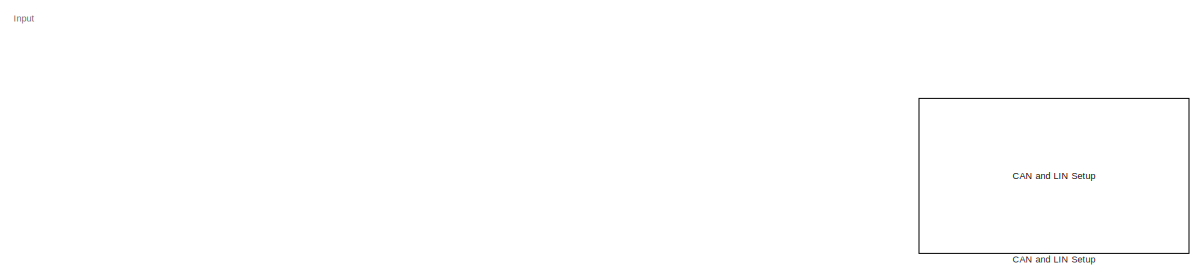
[diagram: root canvas - part 1/8, top left region]
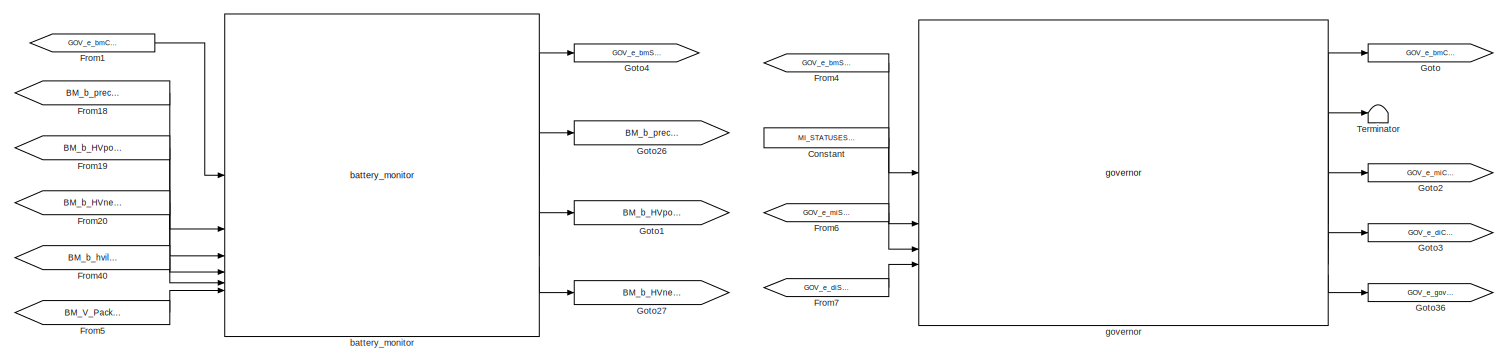
[diagram: root canvas - part 2/8, top center region]
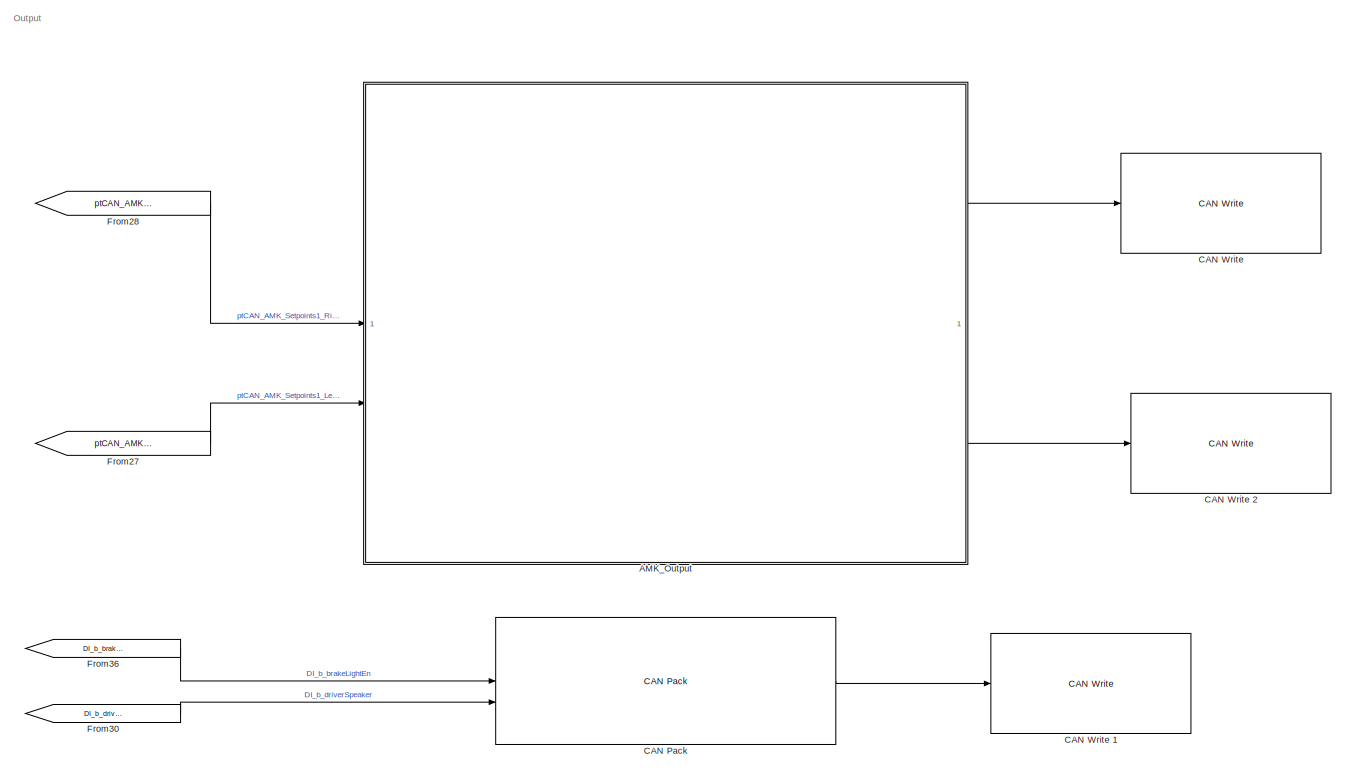
[diagram: root canvas - part 3/8, middle right region]
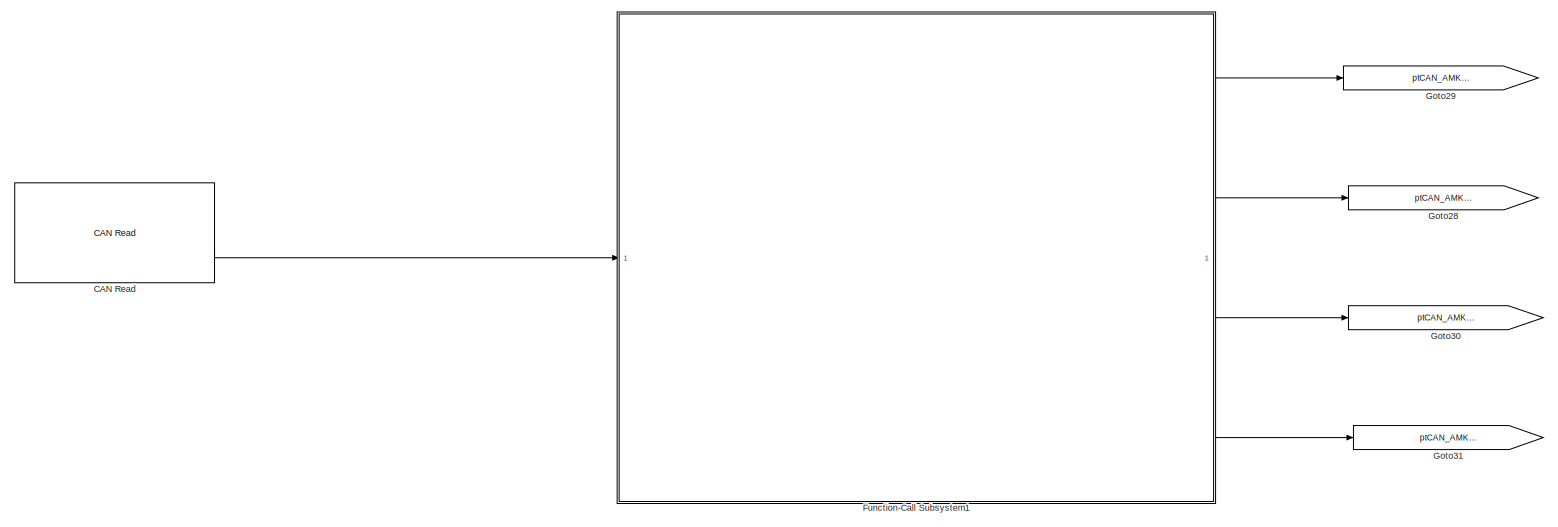
[diagram: root canvas - part 4/8, middle left region]
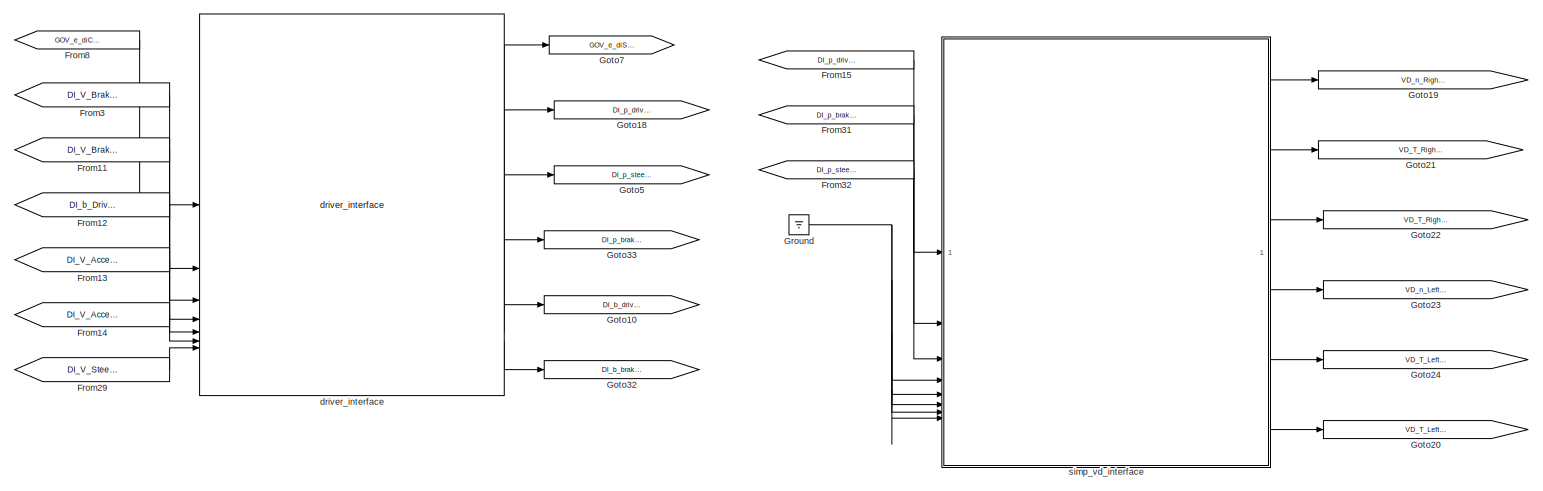
[diagram: root canvas - part 5/8, central region]
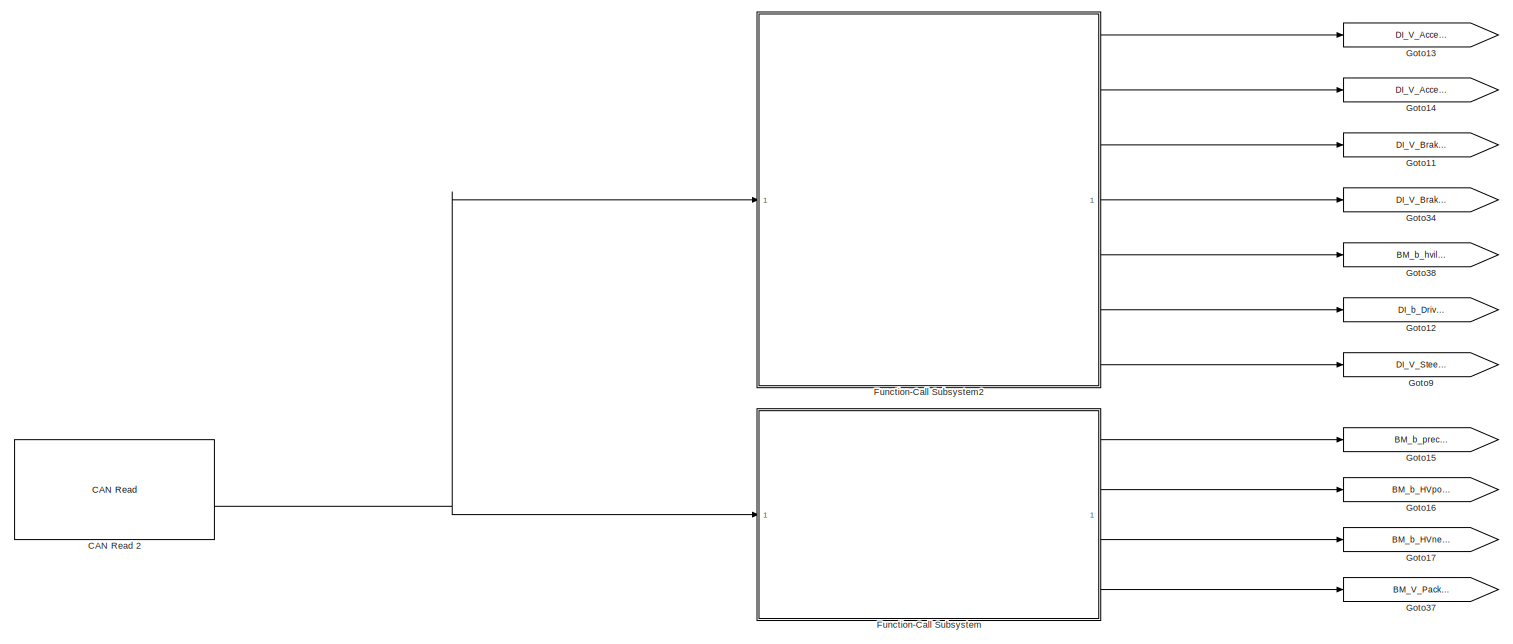
[diagram: root canvas - part 6/8, bottom left region]
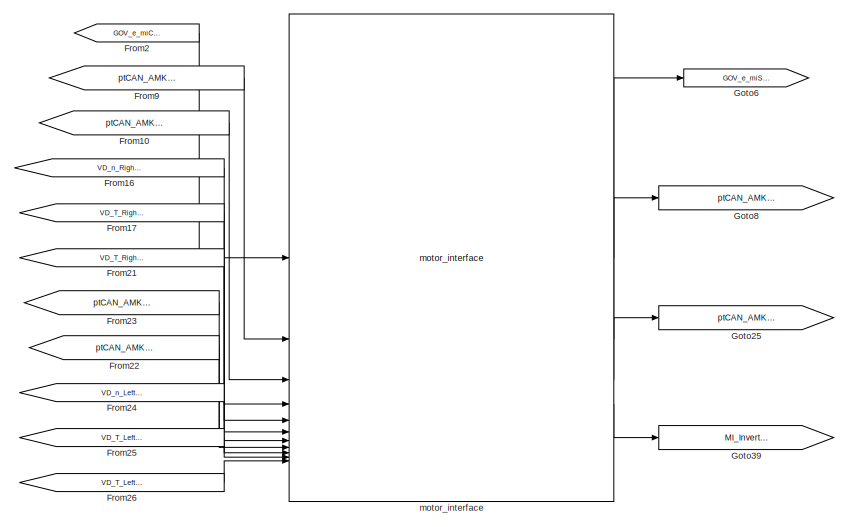
[diagram: root canvas - part 7/8, bottom center region]
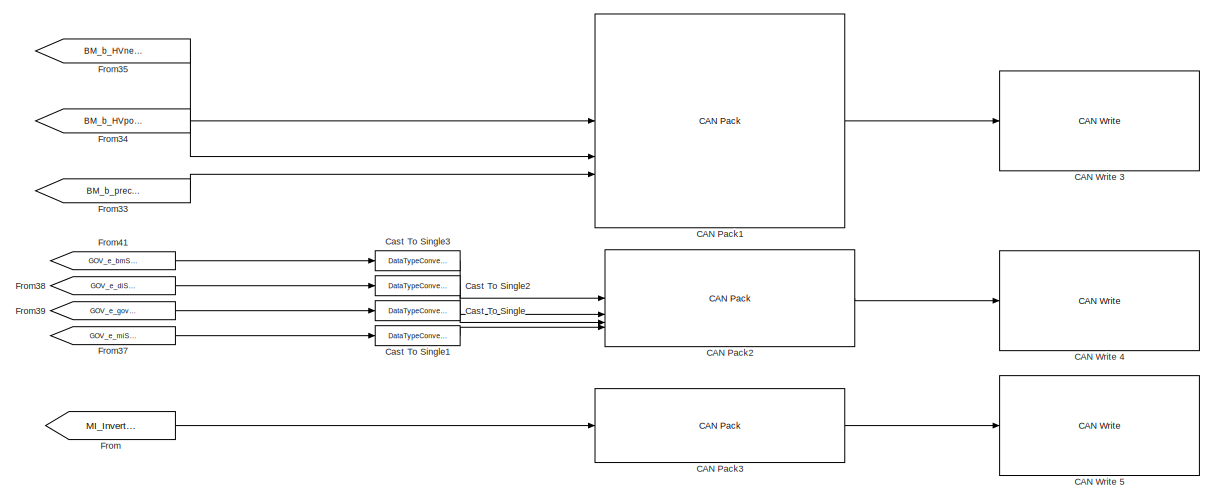
[diagram: root canvas - part 8/8, bottom right region]
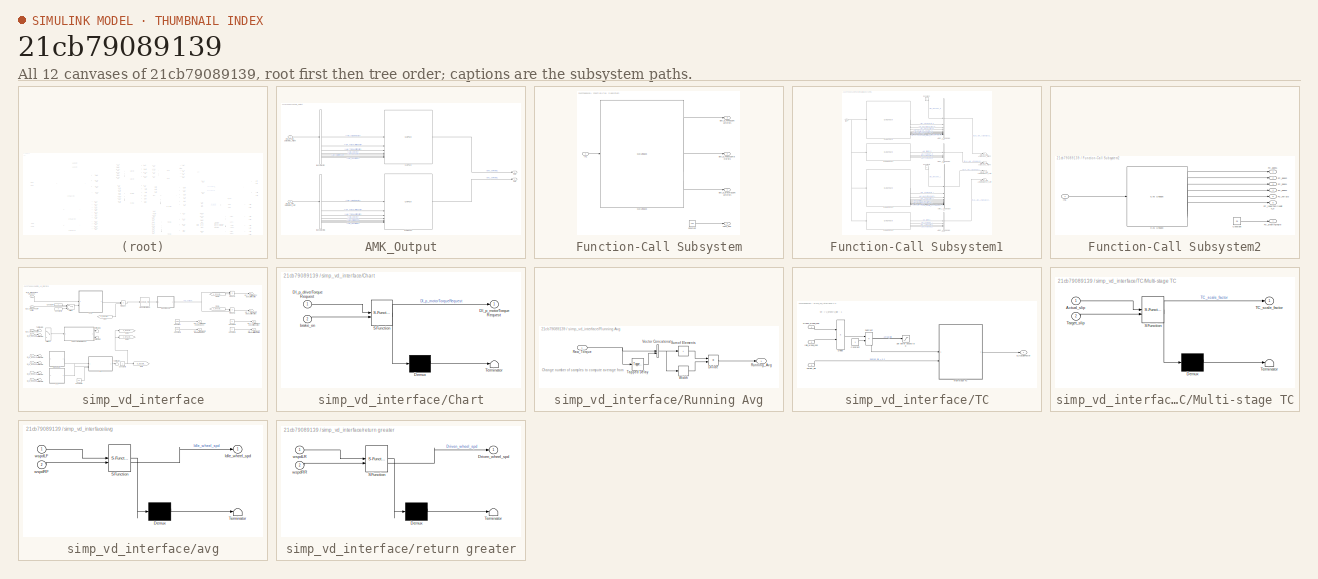
[diagram: thumbnail index - all 12 canvases of the model, root first then tree order]
MODEL slx_21cb79089139
KIND model
CONFIG AbsTol = auto
CONFIG EnableMultiTasking = on
CONFIG FixedStep = 0.001
CONFIG MaxStep = auto
CONFIG MinStep = auto
CONFIG RelTol = 1e-3
CONFIG SampleTimeConstraint = Unconstrained
CONFIG SolverName = FixedStepAuto
CONFIG StartTime = 0.0
CONFIG StopTime = inf
BLOCK [SubSystem] AMK_Output
BLOCK [BusSelector] AMK_Output/Bus Selector
  OutputSignals = AMK_TargetVelocity,AMK_TorqueLimitNegativ,AMK_TorqueLimitPositiv,AMK_bDcOn,AMK_bEnable,AMK_bErrorReset,AMK_bInverterOn
BLOCK [BusSelector] AMK_Output/Bus Selector1
  OutputSignals = AMK_TargetVelocity,AMK_TorqueLimitNegativ,AMK_TorqueLimitPositiv,AMK_bDcOn,AMK_bEnable,AMK_bErrorReset,AMK_bInverterOn
BLOCK [Reference] AMK_Output/CAN Pack  REF=canmsglib/CAN Pack
  LibrarySourceBlock = canlib/CAN Pack
  SourceBlock = canmsglib/CAN Pack
  SourceType = CAN Pack
BLOCK [Reference] AMK_Output/CAN Pack1  REF=canmsglib/CAN Pack
  LibrarySourceBlock = canlib/CAN Pack
  SourceBlock = canmsglib/CAN Pack
  SourceType = CAN Pack
BLOCK [Outport] AMK_Output/Out1
BLOCK [Outport] AMK_Output/Out2
  Port = 2
BLOCK [Inport] AMK_Output/ptCAN_AMK_Setpoints1_Left
  Port = 2
BLOCK [Inport] AMK_Output/ptCAN_AMK_Setpoints1_Right
BLOCK [Reference] CAN Pack  REF=canmsglib/CAN Pack
  LibrarySourceBlock = embeddedtargetslib/Host Communication/CAN Pack
  SourceBlock = canmsglib/CAN Pack
  SourceType = CAN Pack
BLOCK [Reference] CAN Pack1  REF=canmsglib/CAN Pack
  LibrarySourceBlock = embeddedtargetslib/Host Communication/CAN Pack
  SourceBlock = canmsglib/CAN Pack
  SourceType = CAN Pack
BLOCK [Reference] CAN Pack2  REF=canmsglib/CAN Pack
  LibrarySourceBlock = embeddedtargetslib/Host Communication/CAN Pack
  SourceBlock = canmsglib/CAN Pack
  SourceType = CAN Pack
BLOCK [Reference] CAN Pack3  REF=canmsglib/CAN Pack
  LibrarySourceBlock = embeddedtargetslib/Host Communication/CAN Pack
  SourceBlock = canmsglib/CAN Pack
  SourceType = CAN Pack
BLOCK [Reference] CAN Read   REF=speedgoatlib_IO614/CAN Read 
  SourceBlock = speedgoatlib_IO614/CAN Read
  SourceProductName = Simulink Real-Time: Speedgoat I/O Blockset
  SourceType = read_IO61X_can
BLOCK [Reference] CAN Read 2  REF=speedgoatlib_IO614/CAN Read 
  SourceBlock = speedgoatlib_IO614/CAN Read
  SourceProductName = Simulink Real-Time: Speedgoat I/O Blockset
  SourceType = read_IO61X_can
BLOCK [Reference] CAN Write   REF=speedgoatlib_IO614/CAN Write 
  SourceBlock = speedgoatlib_IO614/CAN Write
  SourceProductName = Simulink Real-Time: Speedgoat I/O Blockset
  SourceType = write_IO61X_can
BLOCK [Reference] CAN Write 1  REF=speedgoatlib_IO614/CAN Write 
  SourceBlock = speedgoatlib_IO614/CAN Write
  SourceProductName = Simulink Real-Time: Speedgoat I/O Blockset
  SourceType = write_IO61X_can
BLOCK [Reference] CAN Write 2  REF=speedgoatlib_IO614/CAN Write 
  SourceBlock = speedgoatlib_IO614/CAN Write
  SourceProductName = Simulink Real-Time: Speedgoat I/O Blockset
  SourceType = write_IO61X_can
BLOCK [Reference] CAN Write 3  REF=speedgoatlib_IO614/CAN Write 
  SourceBlock = speedgoatlib_IO614/CAN Write
  SourceProductName = Simulink Real-Time: Speedgoat I/O Blockset
  SourceType = write_IO61X_can
BLOCK [Reference] CAN Write 4  REF=speedgoatlib_IO614/CAN Write 
  SourceBlock = speedgoatlib_IO614/CAN Write
  SourceProductName = Simulink Real-Time: Speedgoat I/O Blockset
  SourceType = write_IO61X_can
BLOCK [Reference] CAN Write 5  REF=speedgoatlib_IO614/CAN Write 
  SourceBlock = speedgoatlib_IO614/CAN Write
  SourceProductName = Simulink Real-Time: Speedgoat I/O Blockset
  SourceType = write_IO61X_can
BLOCK [Reference] CAN and LIN Setup   REF=speedgoatlib_IO614/CAN and LIN Setup 
  LibrarySourceBlock = speedgoatlib_CANLIN_OfA2/CAN and LIN Setup
  SourceBlock = speedgoatlib_IO614/CAN and LIN Setup
  SourceType = setup_IO61X_canlin
BLOCK [DataTypeConversion] Cast To Single
  OutDataTypeStr = single
  RndMeth = Floor
  SaturateOnIntegerOverflow = off
BLOCK [DataTypeConversion] Cast To Single1
  OutDataTypeStr = single
  RndMeth = Floor
  SaturateOnIntegerOverflow = off
BLOCK [DataTypeConversion] Cast To Single2
  OutDataTypeStr = single
  RndMeth = Floor
  SaturateOnIntegerOverflow = off
BLOCK [DataTypeConversion] Cast To Single3
  OutDataTypeStr = single
  RndMeth = Floor
  SaturateOnIntegerOverflow = off
BLOCK [Constant] Constant
  OutDataTypeStr = Enum: MI_STATUSES
  Value = MI_STATUSES.STS_INIT
BLOCK [From] From
  GotoTag = MI_InverterEn
BLOCK [From] From1
  GotoTag = GOV_e_bmCmd
BLOCK [From] From10
  GotoTag = ptCAN_AMK_ActualValues2_Right
BLOCK [From] From11
  GotoTag = DI_V_BrakePedalPos2
BLOCK [From] From12
  GotoTag = DI_b_DriverButton
BLOCK [From] From13
  GotoTag = DI_V_AccelPedalPos1
BLOCK [From] From14
  GotoTag = DI_V_AccelPedalPos2
BLOCK [From] From15
  GotoTag = DI_p_driverTorqueRequest
BLOCK [From] From16
  GotoTag = VD_n_RightMotorSpeedRequest
BLOCK [From] From17
  GotoTag = VD_T_RightMotorTorqueLimitPositive
BLOCK [From] From18
  GotoTag = BM_b_prechrgContactorSts
BLOCK [From] From19
  GotoTag = BM_b_HVposContactorSts
BLOCK [From] From2
  GotoTag = GOV_e_miCmd
BLOCK [From] From20
  GotoTag = BM_b_HVnegContactorSts
BLOCK [From] From21
  GotoTag = VD_T_RightMotorTorqueLimitNegative
BLOCK [From] From22
  GotoTag = ptCAN_AMK_ActualValues2_Left
BLOCK [From] From23
  GotoTag = ptCAN_AMK_ActualValues1_Left
BLOCK [From] From24
  GotoTag = VD_n_LeftMotorSpeedRequest
BLOCK [From] From25
  GotoTag = VD_T_LeftMotorTorqueLimitPositive
BLOCK [From] From26
  GotoTag = VD_T_LeftMotorTorqueLimitNegative
BLOCK [From] From27
  GotoTag = ptCAN_AMK_Setpoints1_Left
BLOCK [From] From28
  GotoTag = ptCAN_AMK_Setpoints1_Right
BLOCK [From] From29
  GotoTag = DI_V_SteeringAngle
BLOCK [From] From3
  GotoTag = DI_V_BrakePedalPos1
BLOCK [From] From30
  GotoTag = DI_b_driverSpeaker
BLOCK [From] From31
  GotoTag = DI_p_brakePedalPosition
BLOCK [From] From32
  GotoTag = DI_p_steeringAngle
BLOCK [From] From33
  GotoTag = BM_b_prechargeContactorCMD
BLOCK [From] From34
  GotoTag = BM_b_HVposContactorCMD
BLOCK [From] From35
  GotoTag = BM_b_HVnegContactorCMD
BLOCK [From] From36
  GotoTag = DI_b_brakeLightEn
BLOCK [From] From37
  GotoTag = GOV_e_miSts
BLOCK [From] From38
  GotoTag = GOV_e_diSts
BLOCK [From] From39
  GotoTag = GOV_e_govSts
BLOCK [From] From4
  GotoTag = GOV_e_bmSts
BLOCK [From] From40
  GotoTag = BM_b_hvilSts
BLOCK [From] From41
  GotoTag = GOV_e_bmSts
BLOCK [From] From5
  GotoTag = BM_V_Pack_SOC
BLOCK [From] From6
  GotoTag = GOV_e_miSts
BLOCK [From] From7
  GotoTag = GOV_e_diSts
BLOCK [From] From8
  GotoTag = GOV_e_diCmd
BLOCK [From] From9
  GotoTag = ptCAN_AMK_ActualValues1_Right
BLOCK [SubSystem] Function-Call Subsystem
  TreatAsAtomicUnit = on
BLOCK [Outport] Function-Call Subsystem/BM_b_HVnegContactorSts
  Port = 3
BLOCK [Outport] Function-Call Subsystem/BM_b_HVposContactorSts
  Port = 2
BLOCK [Outport] Function-Call Subsystem/BM_b_prechrgContactorSts
BLOCK [Reference] Function-Call Subsystem/CAN Unpack  REF=canmsglib/CAN Unpack
  LibrarySourceBlock = canlib/CAN Unpack
  SourceBlock = canmsglib/CAN Unpack
  SourceType = CAN Unpack
BLOCK [Constant] Function-Call Subsystem/Constant
  Value = 100
BLOCK [Inport] Function-Call Subsystem/In1
BLOCK [Outport] Function-Call Subsystem/Pack_SOC
  Port = 4
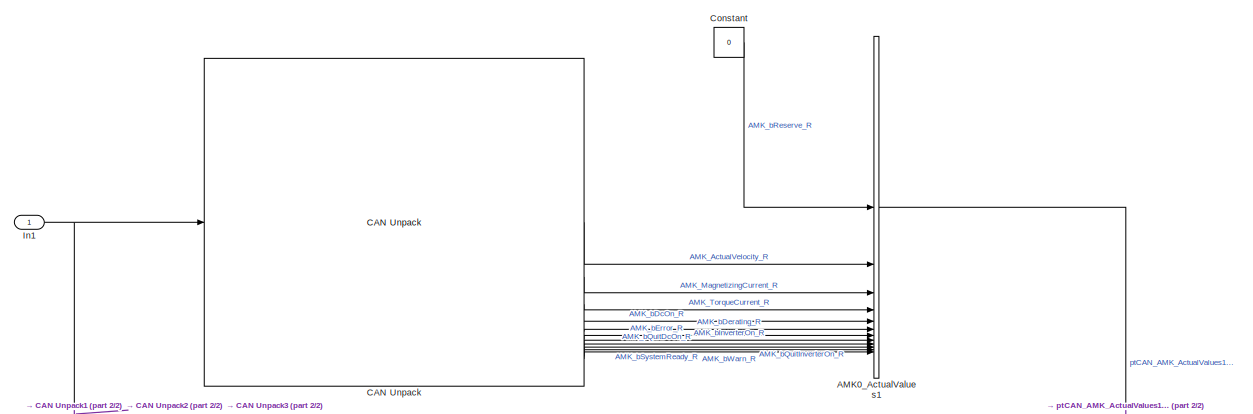
[diagram: Function-Call Subsystem1 - part 1/2, full width, top band]
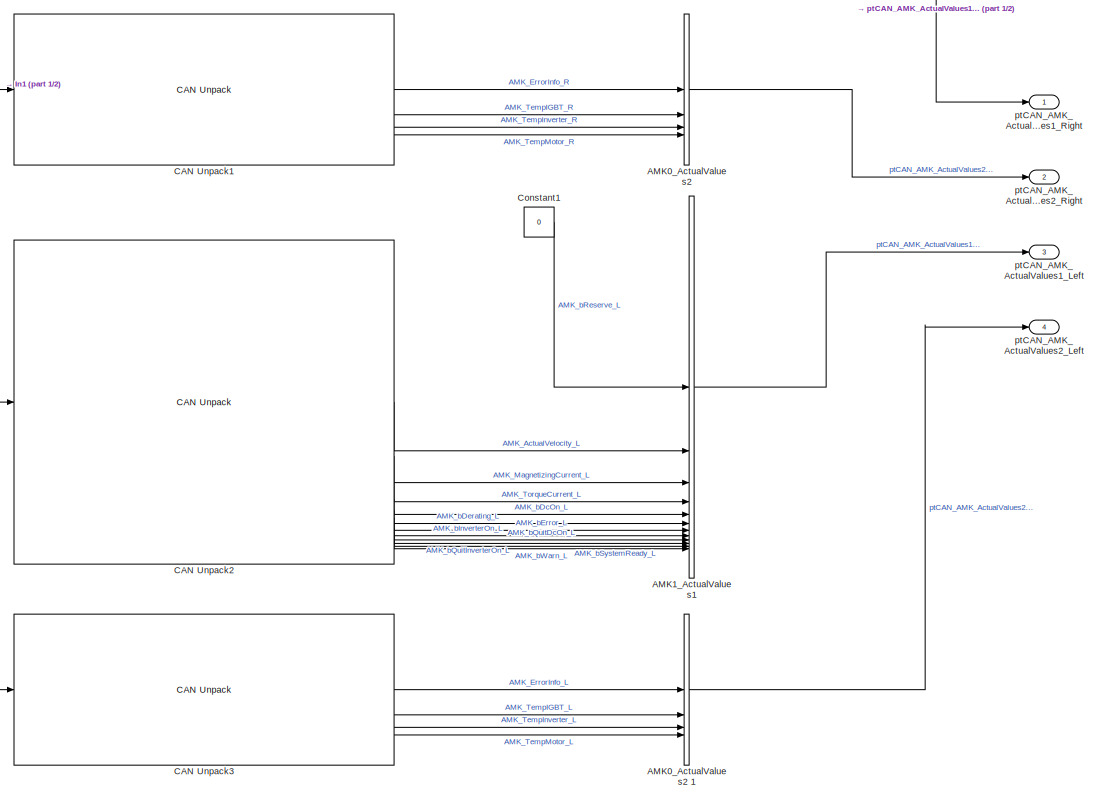
[diagram: Function-Call Subsystem1 - part 2/2, full width, bottom band]
BLOCK [SubSystem] Function-Call Subsystem1
  TreatAsAtomicUnit = on
BLOCK [BusCreator] Function-Call Subsystem1/AMK0_ActualValues1 
  DisplayOption = bar
  InheritFromInputs = on
  Inputs = 12
BLOCK [BusCreator] Function-Call Subsystem1/AMK0_ActualValues2 
  DisplayOption = bar
  InheritFromInputs = on
  Inputs = 4
BLOCK [BusCreator] Function-Call Subsystem1/AMK0_ActualValues2 1
  DisplayOption = bar
  InheritFromInputs = on
  Inputs = 4
BLOCK [BusCreator] Function-Call Subsystem1/AMK1_ActualValues1
  DisplayOption = bar
  InheritFromInputs = on
  Inputs = 12
BLOCK [Reference] Function-Call Subsystem1/CAN Unpack  REF=canmsglib/CAN Unpack
  LibrarySourceBlock = canlib/CAN Unpack
  SourceBlock = canmsglib/CAN Unpack
  SourceType = CAN Unpack
BLOCK [Reference] Function-Call Subsystem1/CAN Unpack1  REF=canmsglib/CAN Unpack
  LibrarySourceBlock = canlib/CAN Unpack
  SourceBlock = canmsglib/CAN Unpack
  SourceType = CAN Unpack
BLOCK [Reference] Function-Call Subsystem1/CAN Unpack2  REF=canmsglib/CAN Unpack
  LibrarySourceBlock = canlib/CAN Unpack
  SourceBlock = canmsglib/CAN Unpack
  SourceType = CAN Unpack
BLOCK [Reference] Function-Call Subsystem1/CAN Unpack3  REF=canmsglib/CAN Unpack
  LibrarySourceBlock = canlib/CAN Unpack
  SourceBlock = canmsglib/CAN Unpack
  SourceType = CAN Unpack
BLOCK [Constant] Function-Call Subsystem1/Constant
  Value = 0
BLOCK [Constant] Function-Call Subsystem1/Constant1
  Value = 0
BLOCK [Inport] Function-Call Subsystem1/In1
BLOCK [Outport] Function-Call Subsystem1/ptCAN_AMK_ActualValues1_Left
  Port = 3
BLOCK [Outport] Function-Call Subsystem1/ptCAN_AMK_ActualValues1_Right
BLOCK [Outport] Function-Call Subsystem1/ptCAN_AMK_ActualValues2_Left
  Port = 4
BLOCK [Outport] Function-Call Subsystem1/ptCAN_AMK_ActualValues2_Right
  Port = 2
BLOCK [SubSystem] Function-Call Subsystem2
  TreatAsAtomicUnit = on
BLOCK [Reference] Function-Call Subsystem2/CAN Unpack  REF=canmsglib/CAN Unpack
  LibrarySourceBlock = canlib/CAN Unpack
  SourceBlock = canmsglib/CAN Unpack
  SourceType = CAN Unpack
BLOCK [Constant] Function-Call Subsystem2/Constant
  Value = 0.5
BLOCK [Outport] Function-Call Subsystem2/FC_apps1
BLOCK [Outport] Function-Call Subsystem2/FC_apps2
  Port = 2
BLOCK [Outport] Function-Call Subsystem2/FC_bpps1
  Port = 3
BLOCK [Outport] Function-Call Subsystem2/FC_bpps2
  Port = 4
BLOCK [Outport] Function-Call Subsystem2/FC_hvilSts
  Port = 5
BLOCK [Outport] Function-Call Subsystem2/FC_readyToDriveBtn_n
  Port = 6
BLOCK [Outport] Function-Call Subsystem2/FC_steeringAngle
  Port = 7
BLOCK [Inport] Function-Call Subsystem2/In1
BLOCK [Goto] Goto
  GotoTag = GOV_e_bmCmd
BLOCK [Goto] Goto1
  GotoTag = BM_b_HVposContactorCMD
BLOCK [Goto] Goto10
  GotoTag = DI_b_driverSpeaker
BLOCK [Goto] Goto11
  GotoTag = DI_V_BrakePedalPos1
BLOCK [Goto] Goto12
  GotoTag = DI_b_DriverButton
BLOCK [Goto] Goto13
  GotoTag = DI_V_AccelPedalPos1
BLOCK [Goto] Goto14
  GotoTag = DI_V_AccelPedalPos2
BLOCK [Goto] Goto15
  GotoTag = BM_b_prechrgContactorSts
BLOCK [Goto] Goto16
  GotoTag = BM_b_HVposContactorSts
BLOCK [Goto] Goto17
  GotoTag = BM_b_HVnegContactorSts
BLOCK [Goto] Goto18
  GotoTag = DI_p_driverTorqueRequest
BLOCK [Goto] Goto19
  GotoTag = VD_n_RightMotorSpeedRequest
BLOCK [Goto] Goto2
  GotoTag = GOV_e_miCmd
BLOCK [Goto] Goto20
  GotoTag = VD_T_LeftMotorTorqueLimitNegative
BLOCK [Goto] Goto21
  GotoTag = VD_T_RightMotorTorqueLimitPositive
BLOCK [Goto] Goto22
  GotoTag = VD_T_RightMotorTorqueLimitNegative
BLOCK [Goto] Goto23
  GotoTag = VD_n_LeftMotorSpeedRequest
BLOCK [Goto] Goto24
  GotoTag = VD_T_LeftMotorTorqueLimitPositive
BLOCK [Goto] Goto25
  GotoTag = ptCAN_AMK_Setpoints1_Left
BLOCK [Goto] Goto26
  GotoTag = BM_b_prechargeContactorCMD
BLOCK [Goto] Goto27
  GotoTag = BM_b_HVnegContactorCMD
  NameLocation = left
BLOCK [Goto] Goto28
  GotoTag = ptCAN_AMK_ActualValues2_Right
BLOCK [Goto] Goto29
  GotoTag = ptCAN_AMK_ActualValues1_Right
BLOCK [Goto] Goto3
  GotoTag = GOV_e_diCmd
BLOCK [Goto] Goto30
  GotoTag = ptCAN_AMK_ActualValues1_Left
BLOCK [Goto] Goto31
  GotoTag = ptCAN_AMK_ActualValues2_Left
BLOCK [Goto] Goto32
  GotoTag = DI_b_brakeLightEn
BLOCK [Goto] Goto33
  GotoTag = DI_p_brakePedalPosition
BLOCK [Goto] Goto34
  GotoTag = DI_V_BrakePedalPos2
BLOCK [Goto] Goto36
  GotoTag = GOV_e_govSts
BLOCK [Goto] Goto37
  GotoTag = BM_V_Pack_SOC
BLOCK [Goto] Goto38
  GotoTag = BM_b_hvilSts
BLOCK [Goto] Goto39
  GotoTag = MI_InverterEn
BLOCK [Goto] Goto4
  GotoTag = GOV_e_bmSts
BLOCK [Goto] Goto5
  GotoTag = DI_p_steeringAngle
BLOCK [Goto] Goto6
  GotoTag = GOV_e_miSts
BLOCK [Goto] Goto7
  GotoTag = GOV_e_diSts
BLOCK [Goto] Goto8
  GotoTag = ptCAN_AMK_Setpoints1_Right
BLOCK [Goto] Goto9
  GotoTag = DI_V_SteeringAngle
BLOCK [Ground] Ground
BLOCK [Terminator] Terminator
BLOCK [Reference] battery_monitor  REF=battery_monitor_lib/battery_monitor  (lib defined in slx_91b9e2d5ec61)
  SourceBlock = battery_monitor_lib/battery_monitor
  SourceType = SubSystem
BLOCK [Reference] driver_interface  REF=driver_interface_lib/driver_interface  (lib defined in slx_3cb616a1b385)
  SourceBlock = driver_interface_lib/driver_interface
  SourceType = SubSystem
BLOCK [Reference] governor  REF=governor_lib/governor  (lib defined in slx_791b6fe89bfd)
  SourceBlock = governor_lib/governor
  SourceType = SubSystem
BLOCK [Reference] motor_interface  REF=motor_interface_lib/motor_interface  (lib defined in slx_5f2d46c379c1, slx_6012f76cf487)
  SourceBlock = motor_interface_lib/motor_interface
  SourceType = SubSystem
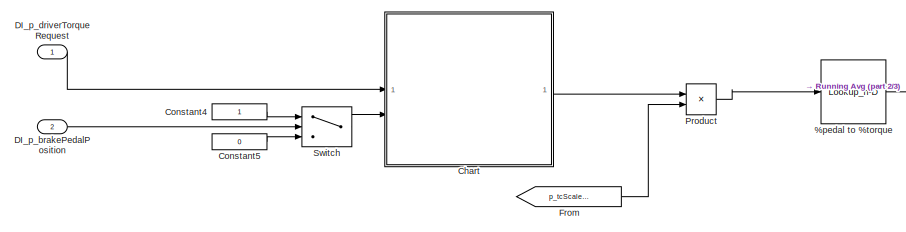
[diagram: simp_vd_interface - part 1/3, top left region]
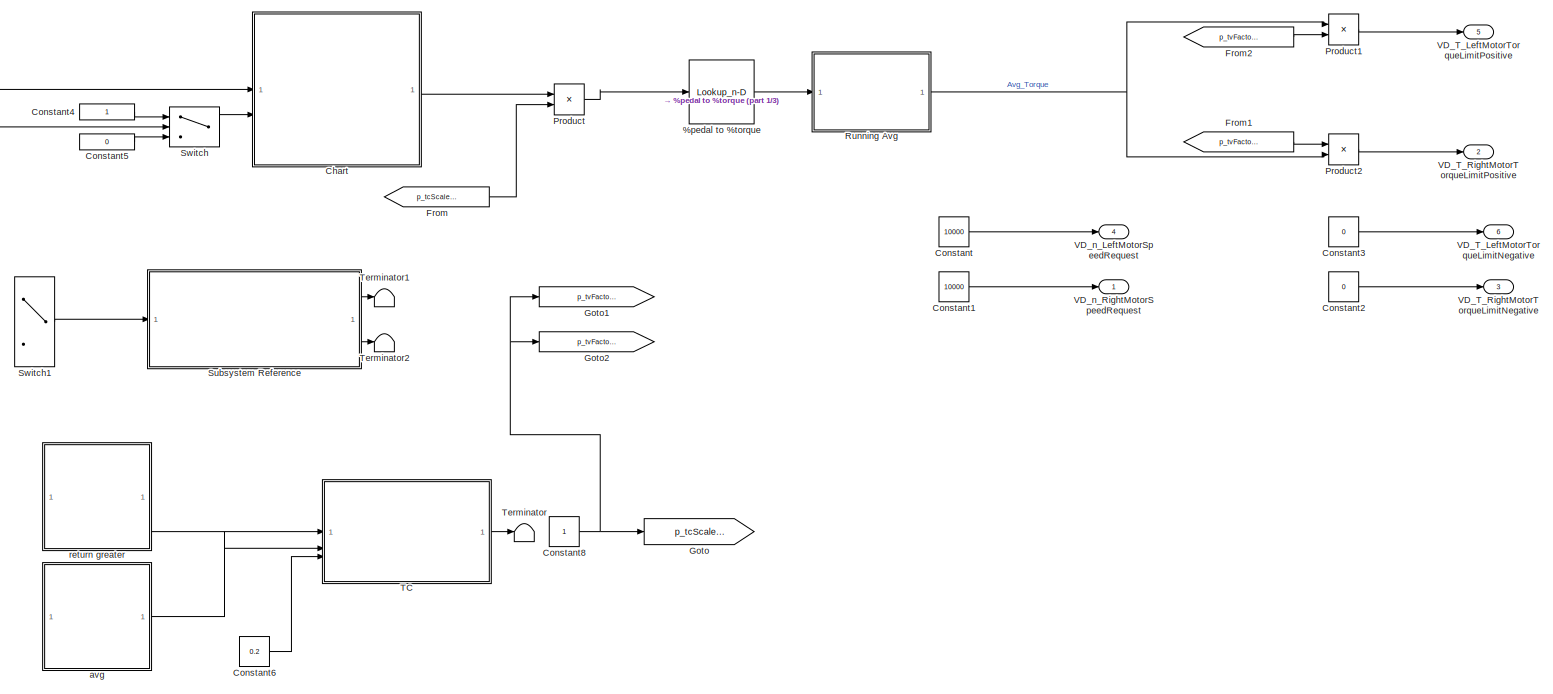
[diagram: simp_vd_interface - part 2/3, most of the canvas]
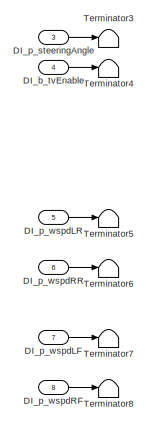
[diagram: simp_vd_interface - part 3/3, bottom left region]
BLOCK [SubSystem] simp_vd_interface
  AncestorBlock = simp_vd_lib/simp_vd_interface
BLOCK [Lookup_n-D] simp_vd_interface/%pedal to %torque
  BreakpointsForDimension1 = [linspace(0,1,101)]
  InputPortMap = u0
  InternalRulePriority = Speed
  NumberOfTableDimensions = 1
  RndMeth = Simplest
  Table = [linspace(0,600,101)]
BLOCK [SubSystem] simp_vd_interface/Chart
  ErrorFcn = Stateflow.Translate.translate
  PermitHierarchicalResolution = ExplicitOnly
  SFBlockType = Chart
  TreatAsAtomicUnit = on
BLOCK [Demux] simp_vd_interface/Chart/ Demux 
  Outputs = 1
BLOCK [S-Function] simp_vd_interface/Chart/ SFunction 
  EnableBusSupport = on
  FunctionName = sf_sfun
  PortCounts = [2 2]
  SFcnIsStateOwnerBlock = off
  SFunctionDeploymentMode = off
  Tag = Stateflow S-Function 3
BLOCK [Terminator] simp_vd_interface/Chart/ Terminator 
BLOCK [Inport] simp_vd_interface/Chart/DI_p_driverTorqueRequest
BLOCK [Outport] simp_vd_interface/Chart/DI_p_motorTorqueRequest
BLOCK [Inport] simp_vd_interface/Chart/brake_on
  Port = 2
BLOCK [Constant] simp_vd_interface/Constant
  Value = 10000
BLOCK [Constant] simp_vd_interface/Constant1
  Value = 10000
BLOCK [Constant] simp_vd_interface/Constant2
  Value = 0
BLOCK [Constant] simp_vd_interface/Constant3
  Value = 0
BLOCK [Constant] simp_vd_interface/Constant4
BLOCK [Constant] simp_vd_interface/Constant5
  Value = 0
BLOCK [Constant] simp_vd_interface/Constant6
  Commented = on
  Value = 0.2
BLOCK [Constant] simp_vd_interface/Constant8
BLOCK [Inport] simp_vd_interface/DI_b_tvEnable
  Port = 4
BLOCK [Inport] simp_vd_interface/DI_p_brakePedalPosition
  Port = 2
BLOCK [Inport] simp_vd_interface/DI_p_driverTorqueRequest
BLOCK [Inport] simp_vd_interface/DI_p_steeringAngle
  Port = 3
BLOCK [Inport] simp_vd_interface/DI_p_wspdLF
  Port = 7
BLOCK [Inport] simp_vd_interface/DI_p_wspdLR
  Port = 5
BLOCK [Inport] simp_vd_interface/DI_p_wspdRF
  Port = 8
BLOCK [Inport] simp_vd_interface/DI_p_wspdRR
  Port = 6
BLOCK [From] simp_vd_interface/From
  GotoTag = p_tcScaleFactor
BLOCK [From] simp_vd_interface/From1
  GotoTag = p_tvFactorRight
BLOCK [From] simp_vd_interface/From2
  GotoTag = p_tvFactorLeft
BLOCK [Goto] simp_vd_interface/Goto
  GotoTag = p_tcScaleFactor
BLOCK [Goto] simp_vd_interface/Goto1
  GotoTag = p_tvFactorLeft
BLOCK [Goto] simp_vd_interface/Goto2
  GotoTag = p_tvFactorRight
BLOCK [Product] simp_vd_interface/Product
BLOCK [Product] simp_vd_interface/Product1
BLOCK [Product] simp_vd_interface/Product2
BLOCK [SubSystem] simp_vd_interface/Running Avg
BLOCK [Product] simp_vd_interface/Running Avg/Divide
  Inputs = */
BLOCK [Inport] simp_vd_interface/Running Avg/Raw_Torque
BLOCK [Outport] simp_vd_interface/Running Avg/Running_Avg
BLOCK [Sum] simp_vd_interface/Running Avg/Sum of Elements
  IconShape = rectangular
  Inputs = +
BLOCK [Reference] simp_vd_interface/Running Avg/Tapped Delay  REF=simulink/Discrete/Tapped Delay
  SourceBlock = simulink/Discrete/Tapped Delay
  SourceType = Tapped Delay Line
BLOCK [Concatenate] simp_vd_interface/Running Avg/Vector Concatenate
BLOCK [Width] simp_vd_interface/Running Avg/Width
BLOCK [SubSystem] simp_vd_interface/Subsystem Reference
  Commented = on
  ReferencedSubsystem = open_loop_tv
BLOCK [Switch] simp_vd_interface/Switch
  Criteria = u2 > Threshold
  InputSameDT = off
  SaturateOnIntegerOverflow = off
  Threshold = 0.1
BLOCK [Switch] simp_vd_interface/Switch1
  Commented = on
  Criteria = u2 > Threshold
  InputSameDT = off
  SaturateOnIntegerOverflow = off
BLOCK [SubSystem] simp_vd_interface/TC
  Commented = on
BLOCK [Constant] simp_vd_interface/TC/Constant
BLOCK [Product] simp_vd_interface/TC/Divide
  Inputs = */
BLOCK [Inport] simp_vd_interface/TC/Driven_wheel_spd
BLOCK [Inport] simp_vd_interface/TC/Idle_wheel_spd
  Port = 2
BLOCK [SubSystem] simp_vd_interface/TC/Multi-stage TC
  ErrorFcn = Stateflow.Translate.translate
  PermitHierarchicalResolution = ExplicitOnly
  SFBlockType = Chart
  TreatAsAtomicUnit = on
BLOCK [Demux] simp_vd_interface/TC/Multi-stage TC/ Demux 
  Outputs = 1
BLOCK [S-Function] simp_vd_interface/TC/Multi-stage TC/ SFunction 
  EnableBusSupport = on
  FunctionName = sf_sfun
  PortCounts = [2 2]
  SFcnIsStateOwnerBlock = off
  SFunctionDeploymentMode = off
  Tag = Stateflow S-Function 1
BLOCK [Terminator] simp_vd_interface/TC/Multi-stage TC/ Terminator 
BLOCK [Inport] simp_vd_interface/TC/Multi-stage TC/Actual_slip
BLOCK [Outport] simp_vd_interface/TC/Multi-stage TC/TC_scale_factor
BLOCK [Inport] simp_vd_interface/TC/Multi-stage TC/Target_slip
  Port = 2
BLOCK [Saturate] simp_vd_interface/TC/Set lower bound to 0
  LowerLimit = 0
  UpperLimit = inf
BLOCK [Sum] simp_vd_interface/TC/Subtract
  IconShape = rectangular
  Inputs = +-
BLOCK [Inport] simp_vd_interface/TC/Target_slip
  Port = 3
BLOCK [Outport] simp_vd_interface/TC/p_tcScaleFactor
BLOCK [Terminator] simp_vd_interface/Terminator
  Commented = on
BLOCK [Terminator] simp_vd_interface/Terminator1
  Commented = on
BLOCK [Terminator] simp_vd_interface/Terminator2
  Commented = on
BLOCK [Terminator] simp_vd_interface/Terminator3
BLOCK [Terminator] simp_vd_interface/Terminator4
BLOCK [Terminator] simp_vd_interface/Terminator5
BLOCK [Terminator] simp_vd_interface/Terminator6
BLOCK [Terminator] simp_vd_interface/Terminator7
BLOCK [Terminator] simp_vd_interface/Terminator8
BLOCK [Outport] simp_vd_interface/VD_T_LeftMotorTorqueLimitNegative
  Port = 6
BLOCK [Outport] simp_vd_interface/VD_T_LeftMotorTorqueLimitPositive
  Port = 5
BLOCK [Outport] simp_vd_interface/VD_T_RightMotorTorqueLimitNegative
  Port = 3
BLOCK [Outport] simp_vd_interface/VD_T_RightMotorTorqueLimitPositive
  Port = 2
BLOCK [Outport] simp_vd_interface/VD_n_LeftMotorSpeedRequest
  Port = 4
BLOCK [Outport] simp_vd_interface/VD_n_RightMotorSpeedRequest
BLOCK [SubSystem] simp_vd_interface/avg
  Commented = on
  ErrorFcn = Stateflow.Translate.translate
  LibrarySourceBlock = simulink/User-Defined\nFunctions/MATLAB Function
  PermitHierarchicalResolution = ExplicitOnly
  SFBlockType = MATLAB Function
  TreatAsAtomicUnit = on
BLOCK [Demux] simp_vd_interface/avg/ Demux 
  Outputs = 1
BLOCK [S-Function] simp_vd_interface/avg/ SFunction 
  EnableBusSupport = on
  FunctionName = sf_sfun
  PortCounts = [2 2]
  SFcnIsStateOwnerBlock = off
  SFunctionDeploymentMode = off
  Tag = Stateflow S-Function 2
BLOCK [Terminator] simp_vd_interface/avg/ Terminator 
BLOCK [Outport] simp_vd_interface/avg/Idle_wheel_spd
BLOCK [Inport] simp_vd_interface/avg/wspdLF
BLOCK [Inport] simp_vd_interface/avg/wspdRF
  Port = 2
BLOCK [SubSystem] simp_vd_interface/return greater
  Commented = on
  ErrorFcn = Stateflow.Translate.translate
  LibrarySourceBlock = simulink/User-Defined\nFunctions/MATLAB Function
  PermitHierarchicalResolution = ExplicitOnly
  SFBlockType = MATLAB Function
  TreatAsAtomicUnit = on
BLOCK [Demux] simp_vd_interface/return greater/ Demux 
  Outputs = 1
BLOCK [S-Function] simp_vd_interface/return greater/ SFunction 
  EnableBusSupport = on
  FunctionName = sf_sfun
  PortCounts = [2 2]
  SFcnIsStateOwnerBlock = off
  SFunctionDeploymentMode = off
  Tag = Stateflow S-Function 4
BLOCK [Terminator] simp_vd_interface/return greater/ Terminator 
BLOCK [Outport] simp_vd_interface/return greater/Driven_wheel_spd
BLOCK [Inport] simp_vd_interface/return greater/wspdLR
BLOCK [Inport] simp_vd_interface/return greater/wspdRR
  Port = 2
ANNOTATION (root): Input
ANNOTATION (root): Output
ANNOTATION simp_vd_interface/Running Avg: Change number of samples to compute average from
ANNOTATION simp_vd_interface/TC: SR = V_driven/V_idle - 1
LINE AMK_Output/Bus Selector1:1 -> AMK_Output/CAN Pack1:1
LINE AMK_Output/Bus Selector1:2 -> AMK_Output/CAN Pack1:2
LINE AMK_Output/Bus Selector1:3 -> AMK_Output/CAN Pack1:3
LINE AMK_Output/Bus Selector1:4 -> AMK_Output/CAN Pack1:4
LINE AMK_Output/Bus Selector1:5 -> AMK_Output/CAN Pack1:5
LINE AMK_Output/Bus Selector1:6 -> AMK_Output/CAN Pack1:6
LINE AMK_Output/Bus Selector1:7 -> AMK_Output/CAN Pack1:7
LINE AMK_Output/Bus Selector:1 -> AMK_Output/CAN Pack:1
LINE AMK_Output/Bus Selector:2 -> AMK_Output/CAN Pack:2
LINE AMK_Output/Bus Selector:3 -> AMK_Output/CAN Pack:3
LINE AMK_Output/Bus Selector:4 -> AMK_Output/CAN Pack:4
LINE AMK_Output/Bus Selector:5 -> AMK_Output/CAN Pack:5
LINE AMK_Output/Bus Selector:6 -> AMK_Output/CAN Pack:6
LINE AMK_Output/Bus Selector:7 -> AMK_Output/CAN Pack:7
LINE AMK_Output/CAN Pack1:1 -> AMK_Output/Out2:1
LINE AMK_Output/CAN Pack:1 -> AMK_Output/Out1:1
LINE AMK_Output/ptCAN_AMK_Setpoints1_Left:1 -> AMK_Output/Bus Selector1:1
LINE AMK_Output/ptCAN_AMK_Setpoints1_Right:1 -> AMK_Output/Bus Selector:1
LINE AMK_Output:1 -> CAN Write :1
LINE AMK_Output:2 -> CAN Write 2:1
LINE CAN Pack1:1 -> CAN Write 3:1
LINE CAN Pack2:1 -> CAN Write 4:1
LINE CAN Pack3:1 -> CAN Write 5:1
LINE CAN Pack:1 -> CAN Write 1:1
NET CAN Read 2:2 -> Function-Call Subsystem2:1, Function-Call Subsystem:1
LINE CAN Read :2 -> Function-Call Subsystem1:1
LINE Cast To Single1:1 -> CAN Pack2:4
LINE Cast To Single2:1 -> CAN Pack2:2
LINE Cast To Single3:1 -> CAN Pack2:1
LINE Cast To Single:1 -> CAN Pack2:3
LINE Constant:1 -> governor:2
LINE From10:1 -> motor_interface:3
LINE From11:1 -> driver_interface:3
LINE From12:1 -> driver_interface:4
LINE From13:1 -> driver_interface:5
LINE From14:1 -> driver_interface:6
LINE From15:1 -> simp_vd_interface:1
LINE From16:1 -> motor_interface:4
LINE From17:1 -> motor_interface:5
LINE From18:1 -> battery_monitor:2
LINE From19:1 -> battery_monitor:3
LINE From1:1 -> battery_monitor:1
LINE From20:1 -> battery_monitor:4
LINE From21:1 -> motor_interface:6
LINE From22:1 -> motor_interface:8
LINE From23:1 -> motor_interface:7
LINE From24:1 -> motor_interface:9
LINE From25:1 -> motor_interface:10
LINE From26:1 -> motor_interface:11
LINE From27:1 -> AMK_Output:2
LINE From28:1 -> AMK_Output:1
LINE From29:1 -> driver_interface:7
LINE From2:1 -> motor_interface:1
LINE From30:1 -> CAN Pack:2
LINE From31:1 -> simp_vd_interface:2
LINE From32:1 -> simp_vd_interface:3
LINE From33:1 -> CAN Pack1:3
LINE From34:1 -> CAN Pack1:2
LINE From35:1 -> CAN Pack1:1
LINE From36:1 -> CAN Pack:1
LINE From37:1 -> Cast To Single1:1
LINE From38:1 -> Cast To Single2:1
LINE From39:1 -> Cast To Single:1
LINE From3:1 -> driver_interface:2
LINE From40:1 -> battery_monitor:5
LINE From41:1 -> Cast To Single3:1
LINE From4:1 -> governor:1
LINE From5:1 -> battery_monitor:6
LINE From6:1 -> governor:3
LINE From7:1 -> governor:4
LINE From8:1 -> driver_interface:1
LINE From9:1 -> motor_interface:2
LINE From:1 -> CAN Pack3:1
LINE Function-Call Subsystem/CAN Unpack:1 -> Function-Call Subsystem/BM_b_HVnegContactorSts:1
LINE Function-Call Subsystem/CAN Unpack:2 -> Function-Call Subsystem/BM_b_HVposContactorSts:1
LINE Function-Call Subsystem/CAN Unpack:3 -> Function-Call Subsystem/BM_b_prechrgContactorSts:1
LINE Function-Call Subsystem/Constant:1 -> Function-Call Subsystem/Pack_SOC:1
LINE Function-Call Subsystem/In1:1 -> Function-Call Subsystem/CAN Unpack:1
LINE Function-Call Subsystem1/AMK0_ActualValues1 :1 -> Function-Call Subsystem1/ptCAN_AMK_ActualValues1_Right:1
LINE Function-Call Subsystem1/AMK0_ActualValues2 1:1 -> Function-Call Subsystem1/ptCAN_AMK_ActualValues2_Left:1
LINE Function-Call Subsystem1/AMK0_ActualValues2 :1 -> Function-Call Subsystem1/ptCAN_AMK_ActualValues2_Right:1
LINE Function-Call Subsystem1/AMK1_ActualValues1:1 -> Function-Call Subsystem1/ptCAN_AMK_ActualValues1_Left:1
LINE Function-Call Subsystem1/CAN Unpack1:1 -> Function-Call Subsystem1/AMK0_ActualValues2 :1
LINE Function-Call Subsystem1/CAN Unpack1:2 -> Function-Call Subsystem1/AMK0_ActualValues2 :2
LINE Function-Call Subsystem1/CAN Unpack1:3 -> Function-Call Subsystem1/AMK0_ActualValues2 :3
LINE Function-Call Subsystem1/CAN Unpack1:4 -> Function-Call Subsystem1/AMK0_ActualValues2 :4
LINE Function-Call Subsystem1/CAN Unpack2:1 -> Function-Call Subsystem1/AMK1_ActualValues1:2
LINE Function-Call Subsystem1/CAN Unpack2:10 -> Function-Call Subsystem1/AMK1_ActualValues1:11
LINE Function-Call Subsystem1/CAN Unpack2:11 -> Function-Call Subsystem1/AMK1_ActualValues1:12
LINE Function-Call Subsystem1/CAN Unpack2:2 -> Function-Call Subsystem1/AMK1_ActualValues1:3
LINE Function-Call Subsystem1/CAN Unpack2:3 -> Function-Call Subsystem1/AMK1_ActualValues1:4
LINE Function-Call Subsystem1/CAN Unpack2:4 -> Function-Call Subsystem1/AMK1_ActualValues1:5
LINE Function-Call Subsystem1/CAN Unpack2:5 -> Function-Call Subsystem1/AMK1_ActualValues1:6
LINE Function-Call Subsystem1/CAN Unpack2:6 -> Function-Call Subsystem1/AMK1_ActualValues1:7
LINE Function-Call Subsystem1/CAN Unpack2:7 -> Function-Call Subsystem1/AMK1_ActualValues1:8
LINE Function-Call Subsystem1/CAN Unpack2:8 -> Function-Call Subsystem1/AMK1_ActualValues1:9
LINE Function-Call Subsystem1/CAN Unpack2:9 -> Function-Call Subsystem1/AMK1_ActualValues1:10
LINE Function-Call Subsystem1/CAN Unpack3:1 -> Function-Call Subsystem1/AMK0_ActualValues2 1:1
LINE Function-Call Subsystem1/CAN Unpack3:2 -> Function-Call Subsystem1/AMK0_ActualValues2 1:2
LINE Function-Call Subsystem1/CAN Unpack3:3 -> Function-Call Subsystem1/AMK0_ActualValues2 1:3
LINE Function-Call Subsystem1/CAN Unpack3:4 -> Function-Call Subsystem1/AMK0_ActualValues2 1:4
LINE Function-Call Subsystem1/CAN Unpack:1 -> Function-Call Subsystem1/AMK0_ActualValues1 :2
LINE Function-Call Subsystem1/CAN Unpack:10 -> Function-Call Subsystem1/AMK0_ActualValues1 :11
LINE Function-Call Subsystem1/CAN Unpack:11 -> Function-Call Subsystem1/AMK0_ActualValues1 :12
LINE Function-Call Subsystem1/CAN Unpack:2 -> Function-Call Subsystem1/AMK0_ActualValues1 :3
LINE Function-Call Subsystem1/CAN Unpack:3 -> Function-Call Subsystem1/AMK0_ActualValues1 :4
LINE Function-Call Subsystem1/CAN Unpack:4 -> Function-Call Subsystem1/AMK0_ActualValues1 :5
LINE Function-Call Subsystem1/CAN Unpack:5 -> Function-Call Subsystem1/AMK0_ActualValues1 :6
LINE Function-Call Subsystem1/CAN Unpack:6 -> Function-Call Subsystem1/AMK0_ActualValues1 :7
LINE Function-Call Subsystem1/CAN Unpack:7 -> Function-Call Subsystem1/AMK0_ActualValues1 :8
LINE Function-Call Subsystem1/CAN Unpack:8 -> Function-Call Subsystem1/AMK0_ActualValues1 :9
LINE Function-Call Subsystem1/CAN Unpack:9 -> Function-Call Subsystem1/AMK0_ActualValues1 :10
LINE Function-Call Subsystem1/Constant1:1 -> Function-Call Subsystem1/AMK1_ActualValues1:1
LINE Function-Call Subsystem1/Constant:1 -> Function-Call Subsystem1/AMK0_ActualValues1 :1
NET Function-Call Subsystem1/In1:1 -> Function-Call Subsystem1/CAN Unpack1:1, Function-Call Subsystem1/CAN Unpack2:1, Function-Call Subsystem1/CAN Unpack3:1, Function-Call Subsystem1/CAN Unpack:1
LINE Function-Call Subsystem1:1 -> Goto29:1
LINE Function-Call Subsystem1:2 -> Goto28:1
LINE Function-Call Subsystem1:3 -> Goto30:1
LINE Function-Call Subsystem1:4 -> Goto31:1
LINE Function-Call Subsystem2/CAN Unpack:1 -> Function-Call Subsystem2/FC_apps1:1
LINE Function-Call Subsystem2/CAN Unpack:2 -> Function-Call Subsystem2/FC_apps2:1
LINE Function-Call Subsystem2/CAN Unpack:3 -> Function-Call Subsystem2/FC_bpps1:1
LINE Function-Call Subsystem2/CAN Unpack:4 -> Function-Call Subsystem2/FC_bpps2:1
LINE Function-Call Subsystem2/CAN Unpack:5 -> Function-Call Subsystem2/FC_hvilSts:1
LINE Function-Call Subsystem2/CAN Unpack:6 -> Function-Call Subsystem2/FC_readyToDriveBtn_n:1
LINE Function-Call Subsystem2/Constant:1 -> Function-Call Subsystem2/FC_steeringAngle:1
LINE Function-Call Subsystem2/In1:1 -> Function-Call Subsystem2/CAN Unpack:1
LINE Function-Call Subsystem2:1 -> Goto13:1
LINE Function-Call Subsystem2:2 -> Goto14:1
LINE Function-Call Subsystem2:3 -> Goto11:1
LINE Function-Call Subsystem2:4 -> Goto34:1
LINE Function-Call Subsystem2:5 -> Goto38:1
LINE Function-Call Subsystem2:6 -> Goto12:1
LINE Function-Call Subsystem2:7 -> Goto9:1
LINE Function-Call Subsystem:1 -> Goto15:1
LINE Function-Call Subsystem:2 -> Goto16:1
LINE Function-Call Subsystem:3 -> Goto17:1
LINE Function-Call Subsystem:4 -> Goto37:1
NET Ground:1 -> simp_vd_interface:4, simp_vd_interface:5, simp_vd_interface:6, simp_vd_interface:7, simp_vd_interface:8
LINE battery_monitor:1 -> Goto4:1
LINE battery_monitor:2 -> Goto26:1
LINE battery_monitor:3 -> Goto1:1
LINE battery_monitor:4 -> Goto27:1
LINE driver_interface:1 -> Goto7:1
LINE driver_interface:2 -> Goto18:1
LINE driver_interface:3 -> Goto5:1
LINE driver_interface:4 -> Goto33:1
LINE driver_interface:5 -> Goto10:1
LINE driver_interface:6 -> Goto32:1
LINE governor:1 -> Goto:1
LINE governor:2 -> Terminator:1
LINE governor:3 -> Goto2:1
LINE governor:4 -> Goto3:1
LINE governor:5 -> Goto36:1
LINE motor_interface:1 -> Goto6:1
LINE motor_interface:2 -> Goto8:1
LINE motor_interface:3 -> Goto25:1
LINE motor_interface:4 -> Goto39:1
LINE simp_vd_interface:1 -> Goto19:1
LINE simp_vd_interface:2 -> Goto21:1
LINE simp_vd_interface:3 -> Goto22:1
LINE simp_vd_interface:4 -> Goto23:1
LINE simp_vd_interface:5 -> Goto24:1
LINE simp_vd_interface:6 -> Goto20:1
note: NET lines group one-source signal fan-out (src -> all destinations, sorted); 1:1 wires keep LINE
CHART simp_vd_interface/TC/Multi-stage TC states=4 transitions=5
  STATE_LABEL 'TC_off\nen, du:\nTC_scale_factor = 1;'
  STATE_LABEL 'TC_on\nen, du:\nTC_scale_factor = 0.5;'
  STATE_LABEL 'TC_on1\nen, du:\nTC_scale_factor = 0.25;'
  STATE_LABEL 'TC_on2\nen, du:\nTC_scale_factor = 0;'
CHART simp_vd_interface/avg states=1 transitions=1
  STATE_LABEL 'eML_blk_kernel()'
  STATE_LABEL 'SCRIPT:\nfunction Idle_wheel_spd = fcn(wspdLF,wspdRF)\nIdle_wheel_spd = (wspdLF+wspdRF)/2;\n'
CHART simp_vd_interface/Chart states=2 transitions=3
  STATE_LABEL 'Run\nen, du:\nDI_p_motorTorqueRequest = DI_p_driverTorqueRequest;'
  STATE_LABEL 'Stop\nen, du:\nDI_p_motorTorqueRequest = 0;'
CHART simp_vd_interface/return greater states=1 transitions=1
  STATE_LABEL 'eML_blk_kernel()'
  STATE_LABEL 'SCRIPT:\nfunction Driven_wheel_spd = fcn(wspdLR,wspdRR)\nif wspdLR > wspdRR\n    Driven_wheel_spd = wspdLR;\nelse\n    Driven_wheel_spd = wspdRR;\nend\n\n'
CHART  states=0 transitions=0
CHART  states=0 transitions=0
CHART  states=0 transitions=0
CHART  states=0 transitions=0
